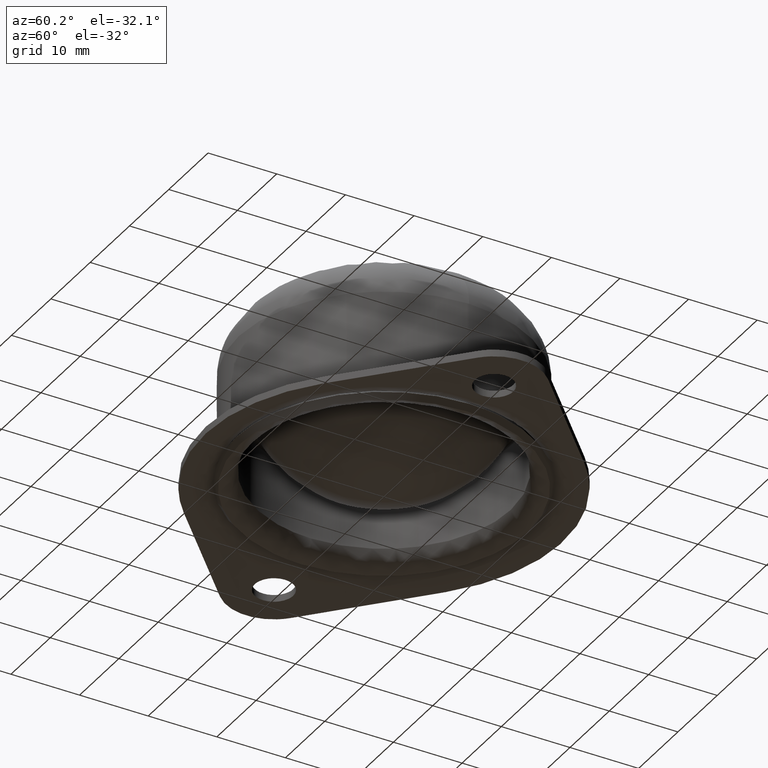
[diagram: clean part render]
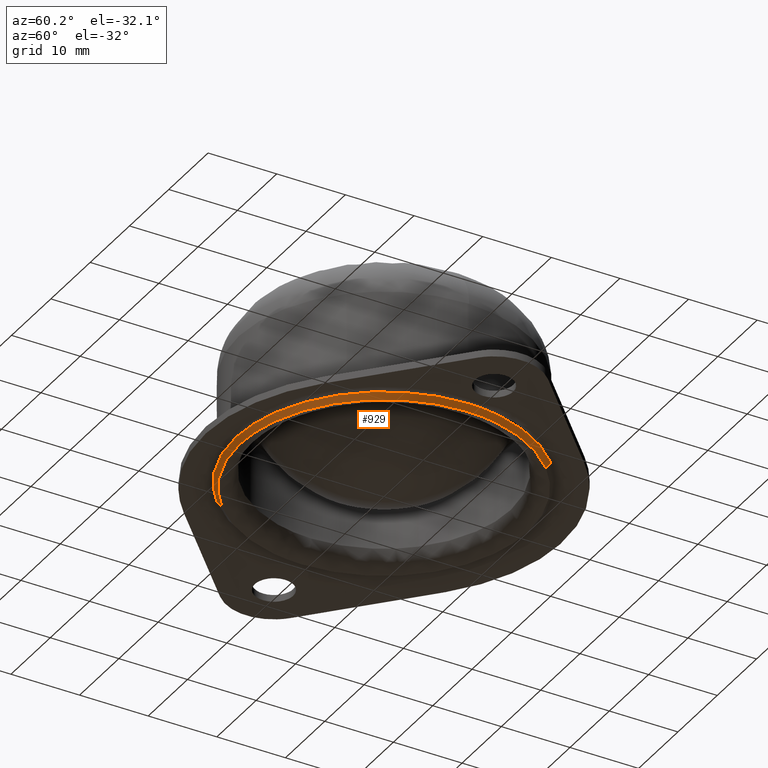
[diagram: same view with one face highlighted and labeled with its STEP entity id]
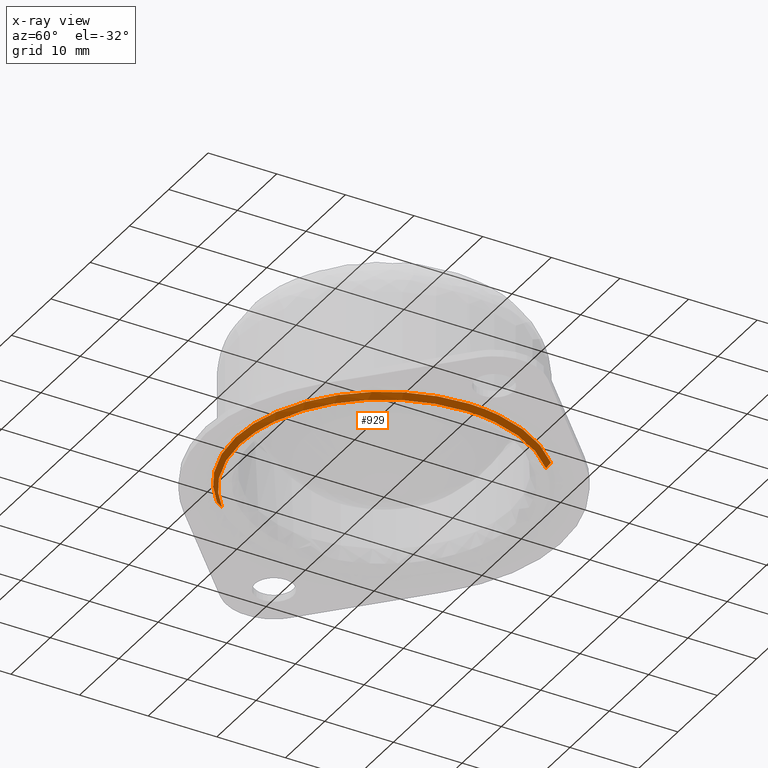
[diagram: x-ray of the same camera — body ghosted, the highlighted face saturated]
A machine part, auxiliary view. The second image highlights one B-rep face of the part: STEP entity #929.
The next image is the same camera in x-ray: the body ghosted, the highlighted face saturated — about 0% of this face is hidden behind the body in this view.
In plain terms, the highlighted face is a freeform B-spline surface patch.
Its self-contained STEP definition (entity closure, byte-faithful):
#689=CARTESIAN_POINT('',(-14.328956666757410,-16.195939282856649,0.780868829315213));
#690=VERTEX_POINT('',#689);
#691=CARTESIAN_POINT('',(-14.609432433685470,-15.943397810678080,0.780868922084157));
#692=VERTEX_POINT('',#691);
#693=CARTESIAN_POINT('',(-14.328956666757410,-16.195939282856649,0.780868829315213));
#694=CARTESIAN_POINT('',(-14.423180471371481,-16.112577130957920,0.780868860240653));
#695=CARTESIAN_POINT('',(-14.516677773676530,-16.028391795005110,0.780868891165414));
#696=CARTESIAN_POINT('',(-14.609432433685470,-15.943397810678080,0.780868922084157));
#697=B_SPLINE_CURVE_WITH_KNOTS('',3,(#693,#694,#695,#696),.UNSPECIFIED.,.F.,.U.,(4,4),(1.417089E-012,0.377422433041498),.UNSPECIFIED.);
#698=EDGE_CURVE('',#690,#692,#697,.T.);
#781=CARTESIAN_POINT('',(-0.000000927185500,-21.624695047554379,0.780868809443031));
#782=VERTEX_POINT('',#781);
#783=CARTESIAN_POINT('',(-0.000000927185500,-21.624695047554379,0.780868809443031));
#784=CARTESIAN_POINT('',(-0.815783128595887,-21.624711665182598,0.780868810574404));
#785=CARTESIAN_POINT('',(-2.488134544818375,-21.529961026468609,0.780868812893710));
#786=CARTESIAN_POINT('',(-4.943638530663280,-21.101916255199480,0.780868816299143));
#787=CARTESIAN_POINT('',(-7.136865554603894,-20.450769081066721,0.780868819340820));
#788=CARTESIAN_POINT('',(-9.404706501240044,-19.524903918016911,0.780868822485991));
#789=CARTESIAN_POINT('',(-11.807975495860481,-18.209498731428269,0.780868825818984));
#790=CARTESIAN_POINT('',(-13.504170467342250,-16.925741354962440,0.780868828171342));
#791=CARTESIAN_POINT('',(-14.328956666757410,-16.195939282856649,0.780868829315213));
#792=B_SPLINE_CURVE_WITH_KNOTS('',3,(#783,#784,#785,#786,#787,#788,#789,#790,#791),.UNSPECIFIED.,.F.,.U.,(4,1,1,1,1,1,4),(9.021354E-009,2.447347995766902,5.017069650719709,7.464422682656018,9.299919202130802,12.359116315952511,15.663038400137649),.UNSPECIFIED.);
#793=EDGE_CURVE('',#782,#690,#792,.T.);
#795=CARTESIAN_POINT('',(21.624695047554400,0.0,0.780868809443031));
#796=VERTEX_POINT('',#795);
#797=CARTESIAN_POINT('',(21.624695047554400,0.0,0.780868809443031));
#798=CARTESIAN_POINT('',(21.625018557164019,-1.592276965097808,0.780868809443030));
#799=CARTESIAN_POINT('',(21.344916140114350,-4.113191188464077,0.780868809443032));
#800=CARTESIAN_POINT('',(20.409228264801470,-7.302874060296242,0.780868809443030));
#801=CARTESIAN_POINT('',(19.466769728852910,-9.501403184065477,0.780868809443033));
#802=CARTESIAN_POINT('',(18.200212159536459,-11.786129919930699,0.780868809443031));
#803=CARTESIAN_POINT('',(16.679910247398070,-13.862498722169230,0.780868809443031));
#804=CARTESIAN_POINT('',(14.964154298679979,-15.653477465700890,0.780868809443019));
#805=CARTESIAN_POINT('',(13.359589729461710,-17.046175680776781,0.780868809443035));
#806=CARTESIAN_POINT('',(11.232173254474059,-18.564265603331719,0.780868809443029));
#807=CARTESIAN_POINT('',(8.749665065672906,-19.852206062584081,0.780868809443032));
#808=CARTESIAN_POINT('',(5.785673775122830,-20.902487690726709,0.780868809443029));
#809=CARTESIAN_POINT('',(3.007578738728152,-21.490629570436930,0.780868809443038));
#810=CARTESIAN_POINT('',(0.928801923170828,-21.624708850087600,0.780868809443028));
#811=CARTESIAN_POINT('',(-0.000000927185500,-21.624695047554379,0.780868809443031));
#812=B_SPLINE_CURVE_WITH_KNOTS('',3,(#797,#798,#799,#800,#801,#802,#803,#804,#805,#806,#807,#808,#809,#810,#811),.UNSPECIFIED.,.F.,.U.,(4,1,1,1,1,1,1,1,1,1,1,1,4),(0.000000034502278,4.776742197130918,7.563194489207611,9.951582045601793,11.941895962899860,15.391796671388660,17.647456009665611,19.372388930138190,21.760775060754199,25.476034028308760,27.731733745626450,31.181626673920459,33.968045357255562),.UNSPECIFIED.);
#813=EDGE_CURVE('',#796,#782,#812,.T.);
#815=CARTESIAN_POINT('',(14.609432433685690,15.943397810678320,0.780868922084270));
#816=VERTEX_POINT('',#815);
#817=CARTESIAN_POINT('',(14.609432433685690,15.943397810678320,0.780868922084270));
#818=CARTESIAN_POINT('',(15.366729710667890,15.249539393533020,0.780868917182111));
#819=CARTESIAN_POINT('',(16.556932433128541,13.991577063120920,0.780868908294518));
#820=CARTESIAN_POINT('',(18.171535171941908,11.813817786724220,0.780868892908500));
#821=CARTESIAN_POINT('',(19.383506511807159,9.703821972273154,0.780868878001212));
#822=CARTESIAN_POINT('',(20.406730470330562,7.294120012083583,0.780868860976524));
#823=CARTESIAN_POINT('',(21.337503414929909,4.154958330812105,0.780868838798089));
#824=CARTESIAN_POINT('',(21.625055595313750,1.634058533865693,0.780868820987777));
#825=CARTESIAN_POINT('',(21.624695047554400,0.0,0.780868809443031));
#826=B_SPLINE_CURVE_WITH_KNOTS('',3,(#817,#818,#819,#820,#821,#822,#823,#824,#825),.UNSPECIFIED.,.F.,.U.,(4,1,1,1,1,1,4),(9.822315E-009,3.081301180941201,5.182192407675863,8.123441088095767,10.364377193897480,13.025507522049191,17.927582562909869),.UNSPECIFIED.);
#827=EDGE_CURVE('',#816,#796,#826,.T.);
#844=CARTESIAN_POINT('',(-14.176843413507010,-15.471309735488120,-0.019521720236075));
#845=CARTESIAN_POINT('',(1.294466321981105,-29.648153148995128,-0.019521720236075));
#846=CARTESIAN_POINT('',(15.471309735488120,-14.176843413507010,-0.019521720236075));
#847=CARTESIAN_POINT('',(29.648153148995128,1.294466321981105,-0.019521720236075));
#848=CARTESIAN_POINT('',(14.176843413507010,15.471309735488120,-0.019521720236075));
#849=CARTESIAN_POINT('',(-14.620246936885019,-15.955199769954600,0.800878572685009));
#850=CARTESIAN_POINT('',(1.334952833069583,-30.575446706839621,0.800878572685009));
#851=CARTESIAN_POINT('',(15.955199769954600,-14.620246936885019,0.800878572685009));
#852=CARTESIAN_POINT('',(30.575446706839621,1.334952833069583,0.800878572685009));
#853=CARTESIAN_POINT('',(14.620246936885019,15.955199769954600,0.800878572685009));
#861=(BOUNDED_SURFACE()B_SPLINE_SURFACE(2,1,((#844,#849),(#845,#850),(#846,#851),(#847,#852),(#848,#853)),.UNSPECIFIED.,.F.,.F.,.U.)B_SPLINE_SURFACE_WITH_KNOTS((3,2,3),(2,2),(0.0,35.855490492524403,71.710980985048806),(0.0,1.0),.UNSPECIFIED.)GEOMETRIC_REPRESENTATION_ITEM()RATIONAL_B_SPLINE_SURFACE(((1.0,1.0),(0.707106781186548,0.707106781186548),(1.0,1.0),(0.707106781186548,0.707106781186548),(1.0,1.0)))REPRESENTATION_ITEM('')SURFACE());
#862=ORIENTED_EDGE('',*,*,#793,.T.);
#863=ORIENTED_EDGE('',*,*,#698,.T.);
#864=CARTESIAN_POINT('',(-14.187394579578950,-15.482824312718609,0.000000114078337));
#865=VERTEX_POINT('',#864);
#866=CARTESIAN_POINT('',(-14.187394579578950,-15.482824312718609,0.000000114078337));
#867=CARTESIAN_POINT('',(-14.609432433685470,-15.943397810678080,0.780868922084157));
#868=QUASI_UNIFORM_CURVE('',1,(#866,#867),.UNSPECIFIED.,.F.,.U.);
#869=EDGE_CURVE('',#865,#692,#868,.T.);
#870=ORIENTED_EDGE('',*,*,#869,.F.);
#871=CARTESIAN_POINT('',(-0.000000939415835,-20.999999999999979,3.772895E-016));
#872=VERTEX_POINT('',#871);
#873=CARTESIAN_POINT('',(-0.000000939415835,-20.999999999999979,3.772895E-016));
#874=CARTESIAN_POINT('',(-0.851869822019759,-21.000015865977979,6.849728E-009));
#875=CARTESIAN_POINT('',(-2.799011884055934,-20.881403785911001,0.000000022506355));
#876=CARTESIAN_POINT('',(-5.391136572539282,-20.356165427377299,0.000000043349173));
#877=CARTESIAN_POINT('',(-7.929283038588316,-19.494040823122969,0.000000063757962));
#878=CARTESIAN_POINT('',(-10.282509957399530,-18.385029033072591,0.000000082679846));
#879=CARTESIAN_POINT('',(-12.430540765362389,-16.988077880069969,0.000000099951784));
#880=CARTESIAN_POINT('',(-13.708871589433320,-15.921310460756150,0.000000110230617));
#881=CARTESIAN_POINT('',(-14.187394579578950,-15.482824312718609,0.000000114078337));
#882=B_SPLINE_CURVE_WITH_KNOTS('',3,(#873,#874,#875,#876,#877,#878,#879,#880,#881),.UNSPECIFIED.,.F.,.U.,(4,1,1,1,1,1,4),(9.159482E-009,2.555613293328863,5.841414655166473,7.910225976649496,10.587545192535449,13.629956926317560,15.577084551461819),.UNSPECIFIED.);
#883=EDGE_CURVE('',#872,#865,#882,.T.);
#884=ORIENTED_EDGE('',*,*,#883,.F.);
#885=CARTESIAN_POINT('',(20.999999999737959,8.874474E-016,3.772895E-016));
#886=VERTEX_POINT('',#885);
#887=CARTESIAN_POINT('',(20.999999999737959,8.874474E-016,3.772895E-016));
#888=CARTESIAN_POINT('',(21.000082275789801,-1.159688507236779,3.772895E-016));
#889=CARTESIAN_POINT('',(20.839477913026052,-3.092474164647127,3.772895E-016));
#890=CARTESIAN_POINT('',(20.264513954700810,-5.652748570818164,3.772895E-016));
#891=CARTESIAN_POINT('',(19.495111575165261,-7.934726424813935,3.772895E-016));
#892=CARTESIAN_POINT('',(18.556408442125040,-9.919451099284023,3.772895E-016));
#893=CARTESIAN_POINT('',(17.344765577711311,-11.899361179728221,3.772895E-016));
#894=CARTESIAN_POINT('',(15.943668281102990,-13.752664210185319,3.772895E-016));
#895=CARTESIAN_POINT('',(14.260058771090611,-15.478113818729280,3.772895E-016));
#896=CARTESIAN_POINT('',(12.427400966306919,-16.972701969115871,3.772895E-016));
#897=CARTESIAN_POINT('',(10.236730927620080,-18.417204233700961,3.772895E-016));
#898=CARTESIAN_POINT('',(7.352902934704306,-19.781251844656040,3.772895E-016));
#899=CARTESIAN_POINT('',(3.779677386550677,-20.769979737297579,3.772895E-016));
#900=CARTESIAN_POINT('',(1.288553569583285,-21.000137542239688,3.772895E-016));
#901=CARTESIAN_POINT('',(-0.000000939415835,-20.999999999999979,3.772895E-016));
#902=B_SPLINE_CURVE_WITH_KNOTS('',3,(#887,#888,#889,#890,#891,#892,#893,#894,#895,#896,#897,#898,#899,#900,#901),.UNSPECIFIED.,.F.,.U.,(4,1,1,1,1,1,1,1,1,1,1,1,4),(0.000000036760078,3.479054767147851,5.798456630922335,7.860130023572292,10.694941166173930,12.370057398345160,14.818285687690990,17.653074619405722,19.585876879921539,21.905279384400270,25.513209090944269,29.121139527746099,32.986775138493897),.UNSPECIFIED.);
#903=EDGE_CURVE('',#886,#872,#902,.T.);
#904=ORIENTED_EDGE('',*,*,#903,.F.);
#905=CARTESIAN_POINT('',(14.187394579579140,15.482824312718821,0.000000114078436));
#906=VERTEX_POINT('',#905);
#907=CARTESIAN_POINT('',(14.187394579579140,15.482824312718821,0.000000114078436));
#908=CARTESIAN_POINT('',(15.023118802737359,14.717141201596201,0.000000108436834));
#909=CARTESIAN_POINT('',(16.229700725765301,13.416724424192919,0.000000098855280));
#910=CARTESIAN_POINT('',(17.789396609654101,11.240185865779720,0.000000082818406));
#911=CARTESIAN_POINT('',(18.857172424367569,9.338711462692761,0.000000068808221));
#912=CARTESIAN_POINT('',(19.744092338139630,7.249999806193610,0.000000053418461));
#913=CARTESIAN_POINT('',(20.410868594423679,5.127750281163339,0.000000037781591));
#914=CARTESIAN_POINT('',(20.885308886192121,2.674916432035468,0.000000019708955));
#915=CARTESIAN_POINT('',(21.000030859967811,0.906754127628666,6.681023E-009));
#916=CARTESIAN_POINT('',(20.999999999737959,8.874474E-016,3.772895E-016));
#917=B_SPLINE_CURVE_WITH_KNOTS('',3,(#907,#908,#909,#910,#911,#912,#913,#914,#915,#916),.UNSPECIFIED.,.F.,.U.,(4,1,1,1,1,1,1,4),(0.000000010492421,3.400329113592969,5.304515828528624,8.024779335146853,9.928955446422389,12.105174034732791,14.689426736099881,17.409689852772690),.UNSPECIFIED.);
#918=EDGE_CURVE('',#906,#886,#917,.T.);
#919=ORIENTED_EDGE('',*,*,#918,.F.);
#920=CARTESIAN_POINT('',(14.187394579579140,15.482824312718821,0.000000114078436));
#921=CARTESIAN_POINT('',(14.609432433685690,15.943397810678320,0.780868922084270));
#922=QUASI_UNIFORM_CURVE('',1,(#920,#921),.UNSPECIFIED.,.F.,.U.);
#923=EDGE_CURVE('',#906,#816,#922,.T.);
#924=ORIENTED_EDGE('',*,*,#923,.T.);
#925=ORIENTED_EDGE('',*,*,#827,.T.);
#926=ORIENTED_EDGE('',*,*,#813,.T.);
#927=EDGE_LOOP('',(#862,#863,#870,#884,#904,#919,#924,#925,#926));
#928=FACE_OUTER_BOUND('',#927,.T.);
#929=ADVANCED_FACE('',(#928),#861,.T.);